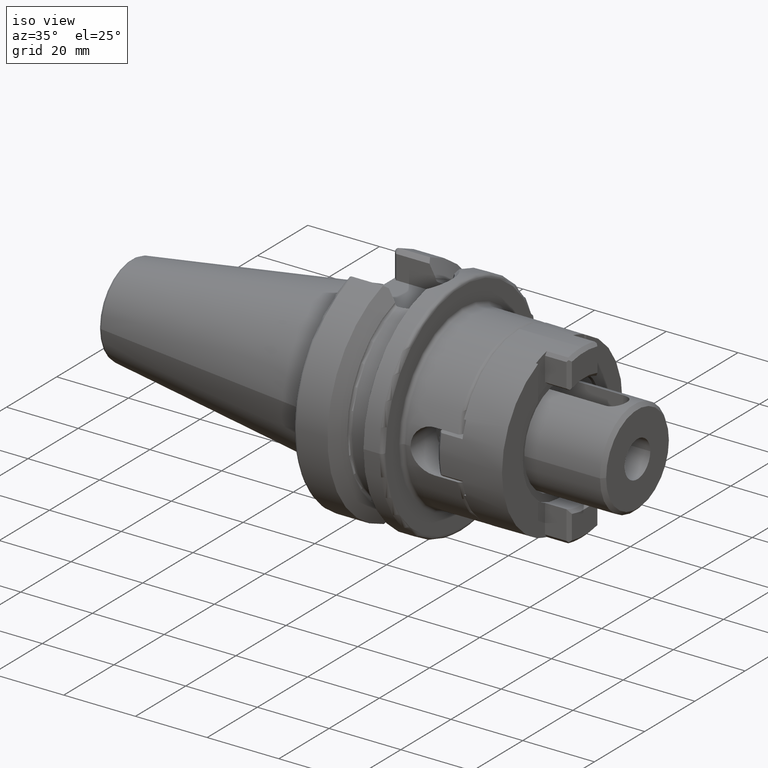
[diagram: clean part render]
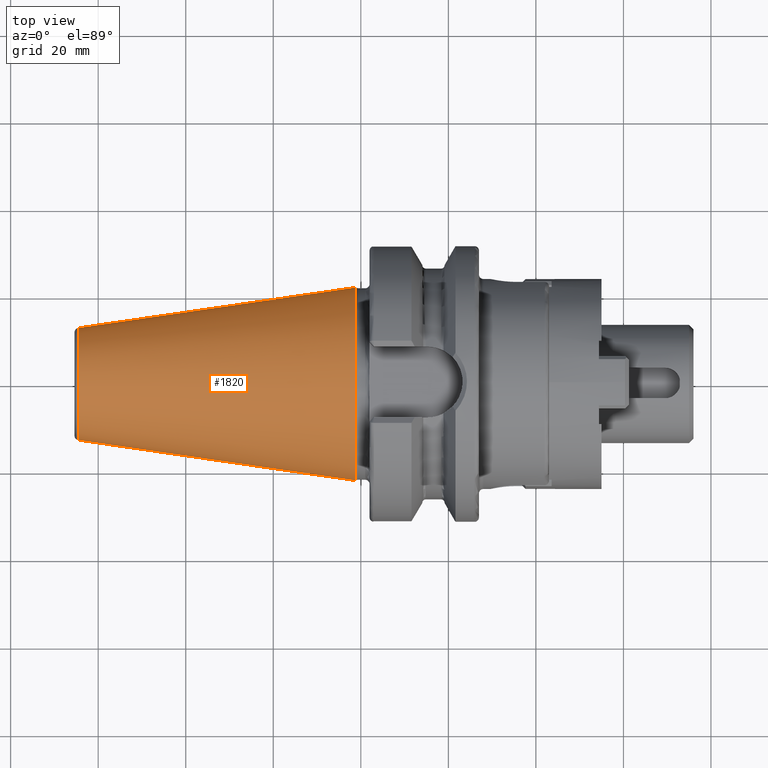
[diagram: tour spotlight — one face highlighted and labeled with its STEP entity id]
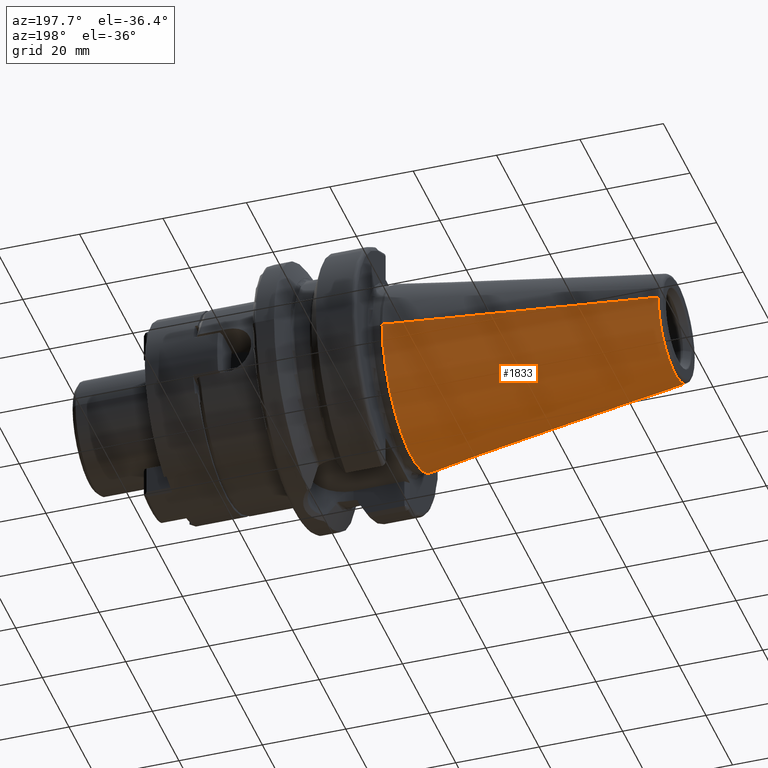
[diagram: tour spotlight — one face highlighted and labeled with its STEP entity id]
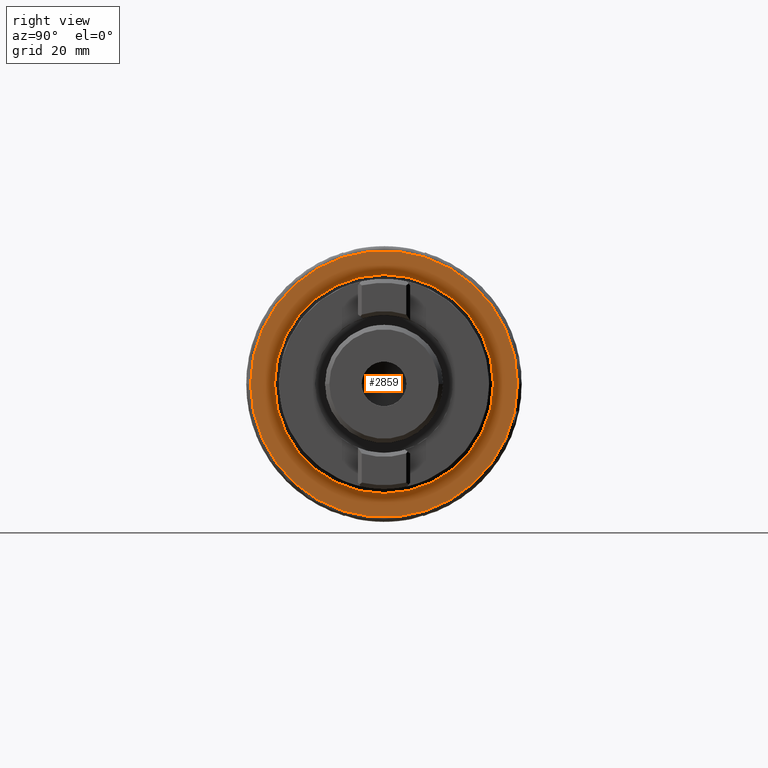
[diagram: tour spotlight — one face highlighted and labeled with its STEP entity id]
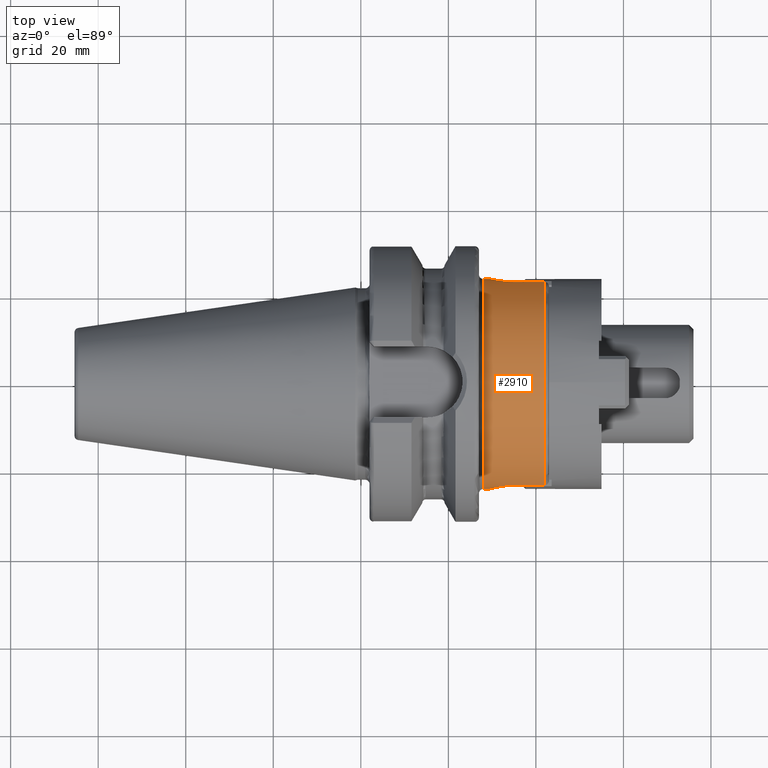
[diagram: tour spotlight — one face highlighted and labeled with its STEP entity id]
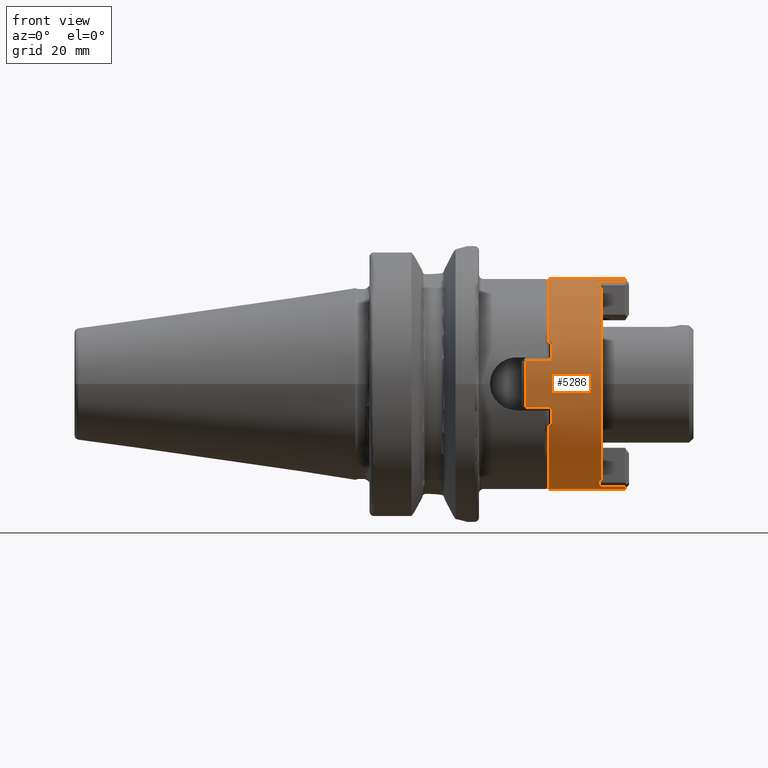
[diagram: tour spotlight — one face highlighted and labeled with its STEP entity id]
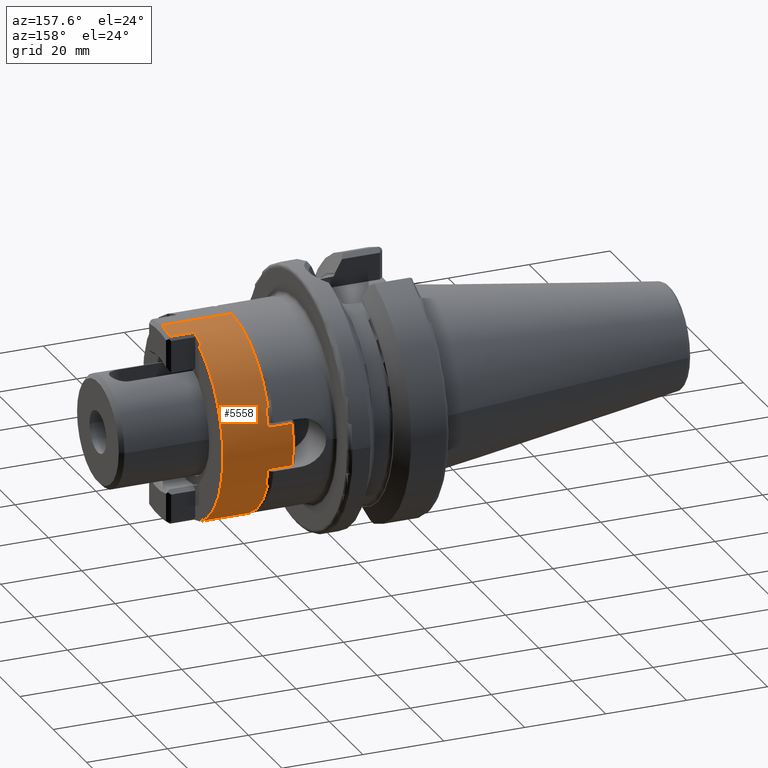
[diagram: tour spotlight — one face highlighted and labeled with its STEP entity id]
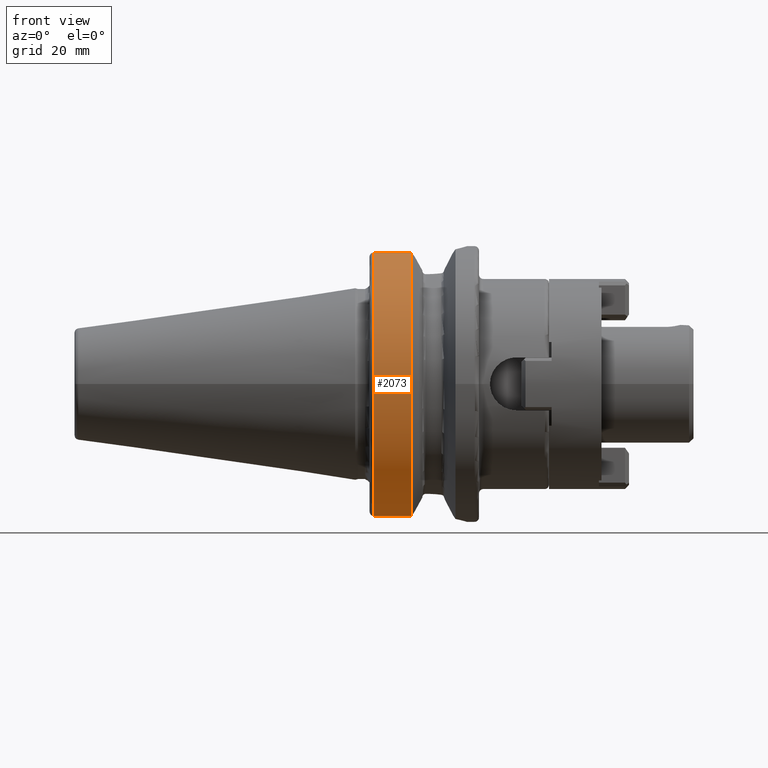
[diagram: tour spotlight — one face highlighted and labeled with its STEP entity id]
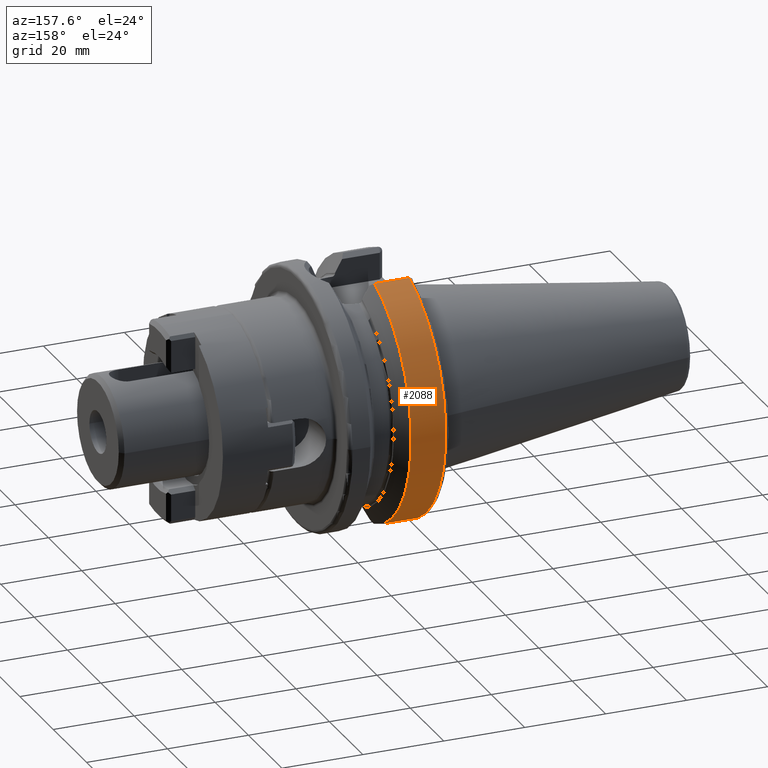
[diagram: tour spotlight — one face highlighted and labeled with its STEP entity id]
A machine part: a face-by-face anatomy tour. The part has 188 B-rep faces; the first image is the clean iso view, then the 8 largest visible faces are spotlighted one at a time (largest first), each with its STEP entity span.

Face 1 — top view, entity #1820. In plain terms, the highlighted conical surface has half-angle 8.298 deg.
Definition (entity closure, byte-faithful):
#37=CARTESIAN_POINT('',(-6.454431866917E1,0.E0,0.E0));
#38=DIRECTION('',(1.E0,0.E0,0.E0));
#39=DIRECTION('',(0.E0,1.E0,0.E0));
#40=AXIS2_PLACEMENT_3D('',#37,#38,#39);
#42=CARTESIAN_POINT('',(-1.266732031557E0,0.E0,0.E0));
#43=DIRECTION('',(1.E0,0.E0,0.E0));
#44=DIRECTION('',(0.E0,1.E0,0.E0));
#45=AXIS2_PLACEMENT_3D('',#42,#43,#44);
#47=DIRECTION('',(-9.895312636440E-1,-1.443186691705E-1,0.E0));
#48=VECTOR('',#47,6.394703124850E1);
#49=CARTESIAN_POINT('',(-1.266732031557E0,2.204025284980E1,0.E0));
#50=LINE('',#49,#48);
#51=DIRECTION('',(-9.895312636440E-1,1.443186691705E-1,0.E0));
#52=VECTOR('',#51,6.394703124850E1);
#53=CARTESIAN_POINT('',(-1.266732031557E0,-2.204025284980E1,0.E0));
#54=LINE('',#53,#52);
#1454=CARTESIAN_POINT('',(-6.454431866917E1,1.281150240261E1,0.E0));
#1456=VERTEX_POINT('',#1454);
#1458=CARTESIAN_POINT('',(-6.454431866917E1,-1.281150240261E1,0.E0));
#1460=VERTEX_POINT('',#1458);
#1673=CARTESIAN_POINT('',(-1.266732031557E0,2.204025284980E1,0.E0));
#1674=VERTEX_POINT('',#1673);
#1675=CARTESIAN_POINT('',(-1.266732031557E0,-2.204025284980E1,0.E0));
#1676=VERTEX_POINT('',#1675);
#1806=CARTESIAN_POINT('',(-3.290552535036E1,0.E0,0.E0));
#1807=DIRECTION('',(1.E0,0.E0,0.E0));
#1808=DIRECTION('',(0.E0,-1.E0,0.E0));
#1809=AXIS2_PLACEMENT_3D('',#1806,#1807,#1808);
#1810=CONICAL_SURFACE('',#1809,1.742587762621E1,8.297826828206E0);
#1812=ORIENTED_EDGE('',*,*,#1811,.F.);
#1814=ORIENTED_EDGE('',*,*,#1813,.T.);
#1816=ORIENTED_EDGE('',*,*,#1815,.T.);
#1817=ORIENTED_EDGE('',*,*,#1799,.F.);
#1818=EDGE_LOOP('',(#1812,#1814,#1816,#1817));
#1819=FACE_OUTER_BOUND('',#1818,.F.);
#1820=ADVANCED_FACE('',(#1819),#1810,.T.);
#41=CIRCLE('',#40,1.281150240261E1);
#46=CIRCLE('',#45,2.204025284980E1);
#1799=EDGE_CURVE('',#1456,#1460,#41,.T.);
#1811=EDGE_CURVE('',#1674,#1456,#50,.T.);
#1813=EDGE_CURVE('',#1674,#1676,#46,.T.);
#1815=EDGE_CURVE('',#1676,#1460,#54,.T.);

Face 2 — auxiliary view, entity #1833. In plain terms, the highlighted conical surface has half-angle 8.298 deg.
Definition (entity closure, byte-faithful):
#32=CARTESIAN_POINT('',(-6.454431866917E1,0.E0,0.E0));
#33=DIRECTION('',(-1.E0,0.E0,0.E0));
#34=DIRECTION('',(0.E0,1.E0,0.E0));
#35=AXIS2_PLACEMENT_3D('',#32,#33,#34);
#47=DIRECTION('',(-9.895312636440E-1,-1.443186691705E-1,0.E0));
#48=VECTOR('',#47,6.394703124850E1);
#49=CARTESIAN_POINT('',(-1.266732031557E0,2.204025284980E1,0.E0));
#50=LINE('',#49,#48);
#51=DIRECTION('',(-9.895312636440E-1,1.443186691705E-1,0.E0));
#52=VECTOR('',#51,6.394703124850E1);
#53=CARTESIAN_POINT('',(-1.266732031557E0,-2.204025284980E1,0.E0));
#54=LINE('',#53,#52);
#55=CARTESIAN_POINT('',(-1.266732031557E0,0.E0,0.E0));
#56=DIRECTION('',(-1.E0,0.E0,0.E0));
#57=DIRECTION('',(0.E0,1.E0,0.E0));
#58=AXIS2_PLACEMENT_3D('',#55,#56,#57);
#1454=CARTESIAN_POINT('',(-6.454431866917E1,1.281150240261E1,0.E0));
#1456=VERTEX_POINT('',#1454);
#1458=CARTESIAN_POINT('',(-6.454431866917E1,-1.281150240261E1,0.E0));
#1460=VERTEX_POINT('',#1458);
#1673=CARTESIAN_POINT('',(-1.266732031557E0,2.204025284980E1,0.E0));
#1674=VERTEX_POINT('',#1673);
#1675=CARTESIAN_POINT('',(-1.266732031557E0,-2.204025284980E1,0.E0));
#1676=VERTEX_POINT('',#1675);
#1821=CARTESIAN_POINT('',(-3.290552535036E1,0.E0,0.E0));
#1822=DIRECTION('',(1.E0,0.E0,0.E0));
#1823=DIRECTION('',(0.E0,-1.E0,0.E0));
#1824=AXIS2_PLACEMENT_3D('',#1821,#1822,#1823);
#1825=CONICAL_SURFACE('',#1824,1.742587762621E1,8.297826828206E0);
#1826=ORIENTED_EDGE('',*,*,#1811,.T.);
#1827=ORIENTED_EDGE('',*,*,#1788,.T.);
#1828=ORIENTED_EDGE('',*,*,#1815,.F.);
#1830=ORIENTED_EDGE('',*,*,#1829,.F.);
#1831=EDGE_LOOP('',(#1826,#1827,#1828,#1830));
#1832=FACE_OUTER_BOUND('',#1831,.F.);
#1833=ADVANCED_FACE('',(#1832),#1825,.T.);
#36=CIRCLE('',#35,1.281150240261E1);
#59=CIRCLE('',#58,2.204025284980E1);
#1788=EDGE_CURVE('',#1456,#1460,#36,.T.);
#1811=EDGE_CURVE('',#1674,#1456,#50,.T.);
#1815=EDGE_CURVE('',#1676,#1460,#54,.T.);
#1829=EDGE_CURVE('',#1674,#1676,#59,.T.);

Face 3 — right view, entity #2859. In plain terms, the highlighted planar face has unit normal (1, 0, 0).
Definition (entity closure, byte-faithful):
#816=CARTESIAN_POINT('',(2.7E1,0.E0,0.E0));
#817=DIRECTION('',(1.E0,0.E0,0.E0));
#818=DIRECTION('',(0.E0,1.E0,0.E0));
#819=AXIS2_PLACEMENT_3D('',#816,#817,#818);
#831=CARTESIAN_POINT('',(2.7E1,0.E0,0.E0));
#832=DIRECTION('',(-1.E0,0.E0,0.E0));
#833=DIRECTION('',(0.E0,1.E0,0.E0));
#834=AXIS2_PLACEMENT_3D('',#831,#832,#833);
#836=CARTESIAN_POINT('',(2.7E1,0.E0,0.E0));
#837=DIRECTION('',(1.E0,0.E0,0.E0));
#838=DIRECTION('',(0.E0,-1.E0,0.E0));
#839=AXIS2_PLACEMENT_3D('',#836,#837,#838);
#841=CARTESIAN_POINT('',(2.7E1,0.E0,0.E0));
#842=DIRECTION('',(1.E0,0.E0,0.E0));
#843=DIRECTION('',(0.E0,1.E0,0.E0));
#844=AXIS2_PLACEMENT_3D('',#841,#842,#843);
#1588=CARTESIAN_POINT('',(2.7E1,3.04875E1,0.E0));
#1589=VERTEX_POINT('',#1588);
#1590=CARTESIAN_POINT('',(2.7E1,-3.04875E1,0.E0));
#1591=VERTEX_POINT('',#1590);
#1681=CARTESIAN_POINT('',(2.7E1,-2.5E1,0.E0));
#1682=CARTESIAN_POINT('',(2.7E1,2.5E1,0.E0));
#1683=VERTEX_POINT('',#1681);
#1684=VERTEX_POINT('',#1682);
#2844=CARTESIAN_POINT('',(2.7E1,0.E0,0.E0));
#2845=DIRECTION('',(1.E0,0.E0,0.E0));
#2846=DIRECTION('',(0.E0,-1.E0,0.E0));
#2847=AXIS2_PLACEMENT_3D('',#2844,#2845,#2846);
#2848=PLANE('',#2847);
#2849=ORIENTED_EDGE('',*,*,#2839,.T.);
#2850=ORIENTED_EDGE('',*,*,#2823,.F.);
#2851=EDGE_LOOP('',(#2849,#2850));
#2852=FACE_OUTER_BOUND('',#2851,.F.);
#2854=ORIENTED_EDGE('',*,*,#2853,.T.);
#2856=ORIENTED_EDGE('',*,*,#2855,.T.);
#2857=EDGE_LOOP('',(#2854,#2856));
#2858=FACE_BOUND('',#2857,.F.);
#2859=ADVANCED_FACE('',(#2852,#2858),#2848,.T.);
#820=CIRCLE('',#819,3.04875E1);
#835=CIRCLE('',#834,3.04875E1);
#840=CIRCLE('',#839,2.5E1);
#845=CIRCLE('',#844,2.5E1);
#2823=EDGE_CURVE('',#1589,#1591,#820,.T.);
#2839=EDGE_CURVE('',#1589,#1591,#835,.T.);
#2853=EDGE_CURVE('',#1683,#1684,#840,.T.);
#2855=EDGE_CURVE('',#1684,#1683,#845,.T.);

Face 4 — top view, entity #2910. In plain terms, the highlighted cylindrical surface (partial cylindrical patch) has radius 24 mm, axis along (1, 0, 0).
Definition (entity closure, byte-faithful):
#856=CARTESIAN_POINT('',(2.95E1,-2.4E1,1.781618678588E-14));
#857=CARTESIAN_POINT('',(2.95E1,-2.4E1,3.488262743599E-1));
#858=CARTESIAN_POINT('',(2.955889643114E1,-2.398503528996E1,1.038250969591E0));
#859=CARTESIAN_POINT('',(2.983158461458E1,-2.391776675992E1,2.067790313911E0));
#860=CARTESIAN_POINT('',(3.027461777692E1,-2.381466005755E1,3.025106007733E0));
#861=CARTESIAN_POINT('',(3.089124119872E1,-2.368443000705E1,3.908877580077E0));
#862=CARTESIAN_POINT('',(3.164154581482E1,-2.354687965137E1,4.658911586512E0));
#863=CARTESIAN_POINT('',(3.252288948517E1,-2.341541019139E1,5.274215121698E0));
#864=CARTESIAN_POINT('',(3.348229664474E1,-2.330967321893E1,5.718618426214E0));
#865=CARTESIAN_POINT('',(3.451288838854E1,-2.324036823877E1,5.991271601747E0));
#866=CARTESIAN_POINT('',(3.520148853397E1,-2.322493272326E1,6.05E0));
#867=CARTESIAN_POINT('',(3.555E1,-2.322493272326E1,6.05E0));
#869=CARTESIAN_POINT('',(2.8E1,0.E0,0.E0));
#870=DIRECTION('',(1.E0,0.E0,0.E0));
#871=DIRECTION('',(0.E0,1.E0,0.E0));
#872=AXIS2_PLACEMENT_3D('',#869,#870,#871);
#874=CARTESIAN_POINT('',(3.555E1,2.322493272326E1,6.05E0));
#875=CARTESIAN_POINT('',(3.520148896936E1,2.322493272326E1,6.05E0));
#876=CARTESIAN_POINT('',(3.451288623510E1,2.324036827927E1,5.991271387898E0));
#877=CARTESIAN_POINT('',(3.348228520251E1,2.330967389442E1,5.718615987162E0));
#878=CARTESIAN_POINT('',(3.252284841371E1,2.341541529589E1,5.274192937461E0));
#879=CARTESIAN_POINT('',(3.164150055989E1,2.354688699842E1,4.658875788756E0));
#880=CARTESIAN_POINT('',(3.089116787305E1,2.368444427366E1,3.908795312810E0));
#881=CARTESIAN_POINT('',(3.027455409787E1,2.381467439077E1,3.024991020678E0));
#882=CARTESIAN_POINT('',(2.983155295637E1,2.391777441906E1,2.067706148079E0));
#883=CARTESIAN_POINT('',(2.955887227362E1,2.398504135523E1,1.038108983739E0));
#884=CARTESIAN_POINT('',(2.95E1,2.4E1,3.487685758230E-1));
#885=CARTESIAN_POINT('',(2.95E1,2.4E1,0.E0));
#887=DIRECTION('',(1.E0,0.E0,0.E0));
#888=VECTOR('',#887,6.45E0);
#889=CARTESIAN_POINT('',(3.555E1,2.322493272326E1,6.05E0));
#890=LINE('',#889,#888);
#891=CARTESIAN_POINT('',(4.2E1,0.E0,0.E0));
#892=DIRECTION('',(-1.E0,0.E0,0.E0));
#893=DIRECTION('',(0.E0,-9.677055301359E-1,2.520833333333E-1));
#894=AXIS2_PLACEMENT_3D('',#891,#892,#893);
#896=DIRECTION('',(1.E0,0.E0,0.E0));
#897=VECTOR('',#896,6.45E0);
#898=CARTESIAN_POINT('',(3.555E1,-2.322493272326E1,6.05E0));
#899=LINE('',#898,#897);
#1221=DIRECTION('',(-1.E0,0.E0,8.752958054790E-13));
#1222=VECTOR('',#1221,1.5E0);
#1223=CARTESIAN_POINT('',(2.95E1,2.4E1,0.E0));
#1224=LINE('',#1223,#1222);
#1230=DIRECTION('',(-1.E0,0.E0,-8.876199103329E-13));
#1231=VECTOR('',#1230,1.5E0);
#1232=CARTESIAN_POINT('',(2.95E1,-2.4E1,1.781618678588E-14));
#1233=LINE('',#1232,#1231);
#1685=CARTESIAN_POINT('',(2.8E1,-2.4E1,0.E0));
#1686=CARTESIAN_POINT('',(2.8E1,2.4E1,0.E0));
#1687=VERTEX_POINT('',#1685);
#1688=VERTEX_POINT('',#1686);
#1719=VERTEX_POINT('',#874);
#1720=VERTEX_POINT('',#885);
#1721=CARTESIAN_POINT('',(4.2E1,2.322493272326E1,6.05E0));
#1722=VERTEX_POINT('',#1721);
#1736=CARTESIAN_POINT('',(3.555E1,-2.322493272326E1,6.05E0));
#1737=VERTEX_POINT('',#1736);
#1742=VERTEX_POINT('',#856);
#1743=CARTESIAN_POINT('',(4.2E1,-2.322493272326E1,6.05E0));
#1744=VERTEX_POINT('',#1743);
#2888=CARTESIAN_POINT('',(2.455E1,0.E0,0.E0));
#2889=DIRECTION('',(1.E0,0.E0,0.E0));
#2890=DIRECTION('',(0.E0,-1.E0,0.E0));
#2891=AXIS2_PLACEMENT_3D('',#2888,#2889,#2890);
#2892=CYLINDRICAL_SURFACE('',#2891,2.4E1);
#2894=ORIENTED_EDGE('',*,*,#2893,.F.);
#2896=ORIENTED_EDGE('',*,*,#2895,.T.);
#2897=ORIENTED_EDGE('',*,*,#2882,.F.);
#2899=ORIENTED_EDGE('',*,*,#2898,.F.);
#2901=ORIENTED_EDGE('',*,*,#2900,.F.);
#2903=ORIENTED_EDGE('',*,*,#2902,.T.);
#2905=ORIENTED_EDGE('',*,*,#2904,.F.);
#2907=ORIENTED_EDGE('',*,*,#2906,.F.);
#2908=EDGE_LOOP('',(#2894,#2896,#2897,#2899,#2901,#2903,#2905,#2907));
#2909=FACE_OUTER_BOUND('',#2908,.F.);
#2910=ADVANCED_FACE('',(#2909),#2892,.T.);
#868=B_SPLINE_CURVE_WITH_KNOTS('',3,(#856,#857,#858,#859,#860,#861,#862,#863,
#864,#865,#866,#867),.UNSPECIFIED.,.F.,.F.,(4,1,1,1,1,1,1,1,1,4),(0.E0,
1.111111111111E-1,2.222222222222E-1,3.333333333333E-1,4.444444444444E-1,
5.555555555556E-1,6.666666666667E-1,7.777777777778E-1,8.888888888889E-1,1.E0),
.UNSPECIFIED.);
#873=CIRCLE('',#872,2.4E1);
#886=B_SPLINE_CURVE_WITH_KNOTS('',3,(#874,#875,#876,#877,#878,#879,#880,#881,
#882,#883,#884,#885),.UNSPECIFIED.,.F.,.F.,(4,1,1,1,1,1,1,1,1,4),(0.E0,
1.111111111111E-1,2.222222222222E-1,3.333333333333E-1,4.444444444444E-1,
5.555555555556E-1,6.666666666667E-1,7.777777777778E-1,8.888888888889E-1,1.E0),
.UNSPECIFIED.);
#895=CIRCLE('',#894,2.4E1);
#2882=EDGE_CURVE('',#1688,#1687,#873,.T.);
#2893=EDGE_CURVE('',#1742,#1737,#868,.T.);
#2895=EDGE_CURVE('',#1742,#1687,#1233,.T.);
#2898=EDGE_CURVE('',#1720,#1688,#1224,.T.);
#2900=EDGE_CURVE('',#1719,#1720,#886,.T.);
#2902=EDGE_CURVE('',#1719,#1722,#890,.T.);
#2904=EDGE_CURVE('',#1744,#1722,#895,.T.);
#2906=EDGE_CURVE('',#1737,#1744,#899,.T.);

Face 5 — front view, entity #5286. In plain terms, the highlighted cylindrical surface (partial cylindrical patch) has radius 24 mm, axis along (-1, 0, 0).
Definition (entity closure, byte-faithful):
#3967=CARTESIAN_POINT('',(0.E0,-5.3625E0,0.E0));
#3968=DIRECTION('',(0.E0,-1.E0,0.E0));
#3969=DIRECTION('',(-1.E0,0.E0,0.E0));
#3970=AXIS2_PLACEMENT_3D('',#3967,#3968,#3969);
#3972=DIRECTION('',(0.E0,-1.E0,0.E0));
#3973=VECTOR('',#3972,5.9625E0);
#3974=CARTESIAN_POINT('',(-2.341422070349E1,6.E-1,-5.270129870130E0));
#3975=LINE('',#3974,#3973);
#3976=DIRECTION('',(0.E0,1.E0,0.E0));
#3977=VECTOR('',#3976,6.E-1);
#3978=CARTESIAN_POINT('',(-2.200834486621E1,0.E0,-9.5725E0));
#3979=LINE('',#3978,#3977);
#3980=CARTESIAN_POINT('',(0.E0,0.E0,0.E0));
#3981=DIRECTION('',(0.E0,-1.E0,0.E0));
#3982=DIRECTION('',(-9.170143694254E-1,0.E0,-3.988541666667E-1));
#3983=AXIS2_PLACEMENT_3D('',#3980,#3981,#3982);
#3985=DIRECTION('',(0.E0,1.E0,0.E0));
#3986=VECTOR('',#3985,6.E-1);
#3987=CARTESIAN_POINT('',(2.200834486621E1,0.E0,-9.5725E0));
#3988=LINE('',#3987,#3986);
#3989=DIRECTION('',(6.137182539479E-14,1.E0,0.E0));
#3990=VECTOR('',#3989,5.9625E0);
#3991=CARTESIAN_POINT('',(2.341422070349E1,-5.3625E0,-5.270129870130E0));
#3992=LINE('',#3991,#3990);
#3993=CARTESIAN_POINT('',(0.E0,-5.3625E0,0.E0));
#3994=DIRECTION('',(0.E0,-1.E0,0.E0));
#3995=DIRECTION('',(9.755925293123E-1,0.E0,-2.195887445887E-1));
#3996=AXIS2_PLACEMENT_3D('',#3993,#3994,#3995);
#3998=DIRECTION('',(3.385027639349E-12,1.E0,5.034390798674E-12));
#3999=VECTOR('',#3998,1.736250000006E1);
#4000=CARTESIAN_POINT('',(2.399999999994E1,-5.362500000059E0,
-8.741022380364E-11));
#4001=LINE('',#4000,#3999);
#4002=CARTESIAN_POINT('',(0.E0,1.2E1,0.E0));
#4003=DIRECTION('',(0.E0,1.E0,0.E0));
#4004=DIRECTION('',(1.E0,0.E0,0.E0));
#4005=AXIS2_PLACEMENT_3D('',#4002,#4003,#4004);
#4007=DIRECTION('',(0.E0,1.E0,0.E0));
#4008=VECTOR('',#4007,6.E-1);
#4009=CARTESIAN_POINT('',(9.5725E0,1.14E1,-2.200834486621E1));
#4010=LINE('',#4009,#4008);
#4011=DIRECTION('',(1.171176282830E-9,-1.E0,-5.203324470214E-9));
#4012=VECTOR('',#4011,5.962499936398E0);
#4013=CARTESIAN_POINT('',(5.270129863147E0,1.736249993640E1,-2.341422067247E1));
#4014=LINE('',#4013,#4012);
#4015=DIRECTION('',(-1.253773403544E-9,9.999999999991E-1,1.355436847203E-6));
#4016=VECTOR('',#4015,5.962508307047E0);
#4017=CARTESIAN_POINT('',(-5.270129870130E0,1.14E1,-2.341422070349E1));
#4018=LINE('',#4017,#4016);
#4019=DIRECTION('',(0.E0,1.E0,0.E0));
#4020=VECTOR('',#4019,6.E-1);
#4021=CARTESIAN_POINT('',(-9.5725E0,1.14E1,-2.200834486621E1));
#4022=LINE('',#4021,#4020);
#4023=CARTESIAN_POINT('',(0.E0,1.2E1,0.E0));
#4024=DIRECTION('',(0.E0,1.E0,0.E0));
#4025=DIRECTION('',(-3.988541666667E-1,0.E0,-9.170143694254E-1));
#4026=AXIS2_PLACEMENT_3D('',#4023,#4024,#4025);
#4095=CARTESIAN_POINT('',(0.E0,6.E-1,0.E0));
#4096=DIRECTION('',(0.E0,1.E0,0.E0));
#4097=DIRECTION('',(-9.170143694254E-1,0.E0,-3.988541666667E-1));
#4098=AXIS2_PLACEMENT_3D('',#4095,#4096,#4097);
#4100=CARTESIAN_POINT('',(0.E0,6.E-1,0.E0));
#4101=DIRECTION('',(0.E0,1.E0,0.E0));
#4102=DIRECTION('',(9.755925293123E-1,0.E0,-2.195887445887E-1));
#4103=AXIS2_PLACEMENT_3D('',#4100,#4101,#4102);
#4248=DIRECTION('',(-3.366816464840E-12,1.E0,-3.849708357264E-12));
#4249=VECTOR('',#4248,1.736250000006E1);
#4250=CARTESIAN_POINT('',(-2.399999999994E1,-5.362500000058E0,
6.683860191834E-11));
#4251=LINE('',#4250,#4249);
#4374=CARTESIAN_POINT('',(-3.114674271288E-6,1.736250022926E1,
1.216882898269E-5));
#4375=DIRECTION('',(0.E0,-1.E0,0.E0));
#4376=DIRECTION('',(-2.195885124470E-1,0.E0,-9.755925815633E-1));
#4377=AXIS2_PLACEMENT_3D('',#4374,#4375,#4376);
#4476=CARTESIAN_POINT('',(0.E0,1.14E1,0.E0));
#4477=DIRECTION('',(0.E0,-1.E0,0.E0));
#4478=DIRECTION('',(2.195887445887E-1,0.E0,-9.755925293123E-1));
#4479=AXIS2_PLACEMENT_3D('',#4476,#4477,#4478);
#4622=CARTESIAN_POINT('',(0.E0,1.14E1,0.E0));
#4623=DIRECTION('',(0.E0,-1.E0,0.E0));
#4624=DIRECTION('',(-3.988541666667E-1,0.E0,-9.170143694254E-1));
#4625=AXIS2_PLACEMENT_3D('',#4622,#4623,#4624);
#4906=CARTESIAN_POINT('',(2.4E1,1.2E1,-1.065814103640E-14));
#4907=CARTESIAN_POINT('',(9.5725E0,1.2E1,-2.200834486621E1));
#4908=VERTEX_POINT('',#4906);
#4909=VERTEX_POINT('',#4907);
#4910=CARTESIAN_POINT('',(-9.5725E0,1.2E1,-2.200834486621E1));
#4911=CARTESIAN_POINT('',(-2.4E1,1.2E1,0.E0));
#4912=VERTEX_POINT('',#4910);
#4913=VERTEX_POINT('',#4911);
#4938=CARTESIAN_POINT('',(9.5725E0,1.14E1,-2.200834486621E1));
#4939=VERTEX_POINT('',#4938);
#4940=CARTESIAN_POINT('',(-9.5725E0,1.14E1,-2.200834486621E1));
#4941=VERTEX_POINT('',#4940);
#4970=CARTESIAN_POINT('',(-2.200834486621E1,0.E0,-9.5725E0));
#4972=VERTEX_POINT('',#4970);
#4975=CARTESIAN_POINT('',(2.200834486621E1,0.E0,-9.5725E0));
#4977=VERTEX_POINT('',#4975);
#4978=CARTESIAN_POINT('',(-2.200834486621E1,6.E-1,-9.5725E0));
#4980=VERTEX_POINT('',#4978);
#4983=CARTESIAN_POINT('',(2.200834486621E1,6.E-1,-9.5725E0));
#4985=VERTEX_POINT('',#4983);
#4990=CARTESIAN_POINT('',(-5.270130078263E0,1.736250022926E1,
-2.341422162819E1));
#4991=CARTESIAN_POINT('',(5.270129777889E0,1.736250022926E1,-2.341422029369E1));
#4992=VERTEX_POINT('',#4990);
#4993=VERTEX_POINT('',#4991);
#5018=CARTESIAN_POINT('',(-5.270129870130E0,1.14E1,-2.341422070349E1));
#5019=VERTEX_POINT('',#5018);
#5028=CARTESIAN_POINT('',(5.270129870130E0,1.14E1,-2.341422070349E1));
#5029=VERTEX_POINT('',#5028);
#5089=CARTESIAN_POINT('',(-2.4E1,-5.3625E0,0.E0));
#5090=CARTESIAN_POINT('',(-2.341422070349E1,-5.3625E0,-5.270129870130E0));
#5091=VERTEX_POINT('',#5089);
#5092=VERTEX_POINT('',#5090);
#5093=CARTESIAN_POINT('',(-2.341422070349E1,6.E-1,-5.270129870130E0));
#5094=VERTEX_POINT('',#5093);
#5119=CARTESIAN_POINT('',(2.4E1,-5.3625E0,0.E0));
#5120=VERTEX_POINT('',#5119);
#5121=CARTESIAN_POINT('',(2.341422070349E1,-5.3625E0,-5.270129870130E0));
#5122=VERTEX_POINT('',#5121);
#5127=CARTESIAN_POINT('',(2.341422070349E1,6.E-1,-5.270129870130E0));
#5128=VERTEX_POINT('',#5127);
#5240=CARTESIAN_POINT('',(0.E0,-6.2625E0,0.E0));
#5241=DIRECTION('',(0.E0,1.E0,0.E0));
#5242=DIRECTION('',(1.E0,0.E0,0.E0));
#5243=AXIS2_PLACEMENT_3D('',#5240,#5241,#5242);
#5244=CYLINDRICAL_SURFACE('',#5243,2.4E1);
#5245=ORIENTED_EDGE('',*,*,#5225,.T.);
#5247=ORIENTED_EDGE('',*,*,#5246,.F.);
#5249=ORIENTED_EDGE('',*,*,#5248,.F.);
#5251=ORIENTED_EDGE('',*,*,#5250,.F.);
#5253=ORIENTED_EDGE('',*,*,#5252,.T.);
#5255=ORIENTED_EDGE('',*,*,#5254,.T.);
#5257=ORIENTED_EDGE('',*,*,#5256,.F.);
#5259=ORIENTED_EDGE('',*,*,#5258,.F.);
#5261=ORIENTED_EDGE('',*,*,#5260,.T.);
#5263=ORIENTED_EDGE('',*,*,#5262,.T.);
#5265=ORIENTED_EDGE('',*,*,#5264,.T.);
#5267=ORIENTED_EDGE('',*,*,#5266,.F.);
#5269=ORIENTED_EDGE('',*,*,#5268,.F.);
#5271=ORIENTED_EDGE('',*,*,#5270,.F.);
#5273=ORIENTED_EDGE('',*,*,#5272,.F.);
#5275=ORIENTED_EDGE('',*,*,#5274,.F.);
#5277=ORIENTED_EDGE('',*,*,#5276,.F.);
#5279=ORIENTED_EDGE('',*,*,#5278,.T.);
#5281=ORIENTED_EDGE('',*,*,#5280,.T.);
#5283=ORIENTED_EDGE('',*,*,#5282,.F.);
#5284=EDGE_LOOP('',(#5245,#5247,#5249,#5251,#5253,#5255,#5257,#5259,#5261,#5263,
#5265,#5267,#5269,#5271,#5273,#5275,#5277,#5279,#5281,#5283));
#5285=FACE_OUTER_BOUND('',#5284,.F.);
#5286=ADVANCED_FACE('',(#5285),#5244,.T.);
#3971=CIRCLE('',#3970,2.4E1);
#3984=CIRCLE('',#3983,2.4E1);
#3997=CIRCLE('',#3996,2.4E1);
#4006=CIRCLE('',#4005,2.4E1);
#4027=CIRCLE('',#4026,2.4E1);
#4099=CIRCLE('',#4098,2.4E1);
#4104=CIRCLE('',#4103,2.4E1);
#4378=CIRCLE('',#4377,2.400001213570E1);
#4480=CIRCLE('',#4479,2.4E1);
#4626=CIRCLE('',#4625,2.4E1);
#5225=EDGE_CURVE('',#5091,#5092,#3971,.T.);
#5246=EDGE_CURVE('',#5094,#5092,#3975,.T.);
#5248=EDGE_CURVE('',#4980,#5094,#4099,.T.);
#5250=EDGE_CURVE('',#4972,#4980,#3979,.T.);
#5252=EDGE_CURVE('',#4972,#4977,#3984,.T.);
#5254=EDGE_CURVE('',#4977,#4985,#3988,.T.);
#5256=EDGE_CURVE('',#5128,#4985,#4104,.T.);
#5258=EDGE_CURVE('',#5122,#5128,#3992,.T.);
#5260=EDGE_CURVE('',#5122,#5120,#3997,.T.);
#5262=EDGE_CURVE('',#5120,#4908,#4001,.T.);
#5264=EDGE_CURVE('',#4908,#4909,#4006,.T.);
#5266=EDGE_CURVE('',#4939,#4909,#4010,.T.);
#5268=EDGE_CURVE('',#5029,#4939,#4480,.T.);
#5270=EDGE_CURVE('',#4993,#5029,#4014,.T.);
#5272=EDGE_CURVE('',#4992,#4993,#4378,.T.);
#5274=EDGE_CURVE('',#5019,#4992,#4018,.T.);
#5276=EDGE_CURVE('',#4941,#5019,#4626,.T.);
#5278=EDGE_CURVE('',#4941,#4912,#4022,.T.);
#5280=EDGE_CURVE('',#4912,#4913,#4027,.T.);
#5282=EDGE_CURVE('',#5091,#4913,#4251,.T.);

Face 6 — auxiliary view, entity #5558. In plain terms, the highlighted cylindrical surface (partial cylindrical patch) has radius 24 mm, axis along (-1, 0, 0).
Definition (entity closure, byte-faithful):
#3998=DIRECTION('',(3.385027639349E-12,1.E0,5.034390798674E-12));
#3999=VECTOR('',#3998,1.736250000006E1);
#4000=CARTESIAN_POINT('',(2.399999999994E1,-5.362500000059E0,
-8.741022380364E-11));
#4001=LINE('',#4000,#3999);
#4239=DIRECTION('',(6.196766835979E-14,1.E0,0.E0));
#4240=VECTOR('',#4239,5.9625E0);
#4241=CARTESIAN_POINT('',(-2.341422070350E1,-5.3625E0,5.270129870130E0));
#4242=LINE('',#4241,#4240);
#4243=CARTESIAN_POINT('',(0.E0,-5.3625E0,0.E0));
#4244=DIRECTION('',(0.E0,-1.E0,0.E0));
#4245=DIRECTION('',(-9.755925293123E-1,0.E0,2.195887445887E-1));
#4246=AXIS2_PLACEMENT_3D('',#4243,#4244,#4245);
#4248=DIRECTION('',(-3.366816464840E-12,1.E0,-3.849708357264E-12));
#4249=VECTOR('',#4248,1.736250000006E1);
#4250=CARTESIAN_POINT('',(-2.399999999994E1,-5.362500000058E0,
6.683860191834E-11));
#4251=LINE('',#4250,#4249);
#4252=CARTESIAN_POINT('',(0.E0,1.2E1,0.E0));
#4253=DIRECTION('',(0.E0,1.E0,0.E0));
#4254=DIRECTION('',(-1.E0,0.E0,0.E0));
#4255=AXIS2_PLACEMENT_3D('',#4252,#4253,#4254);
#4257=DIRECTION('',(0.E0,1.E0,0.E0));
#4258=VECTOR('',#4257,6.E-1);
#4259=CARTESIAN_POINT('',(-9.5725E0,1.14E1,2.200834486621E1));
#4260=LINE('',#4259,#4258);
#4261=DIRECTION('',(1.187599328175E-9,-1.E0,-5.276282945331E-9));
#4262=VECTOR('',#4261,5.962500064494E0);
#4263=CARTESIAN_POINT('',(-5.270129877211E0,1.736250006449E1,2.341422073495E1));
#4264=LINE('',#4263,#4262);
#4265=DIRECTION('',(-1.165729083015E-9,9.999999999991E-1,1.375065093103E-6));
#4266=VECTOR('',#4265,5.962491572649E0);
#4267=CARTESIAN_POINT('',(5.270129870130E0,1.14E1,2.341422070349E1));
#4268=LINE('',#4267,#4266);
#4269=DIRECTION('',(0.E0,1.E0,0.E0));
#4270=VECTOR('',#4269,6.E-1);
#4271=CARTESIAN_POINT('',(9.5725E0,1.14E1,2.200834486621E1));
#4272=LINE('',#4271,#4270);
#4273=CARTESIAN_POINT('',(0.E0,1.2E1,0.E0));
#4274=DIRECTION('',(0.E0,1.E0,0.E0));
#4275=DIRECTION('',(3.988541666667E-1,0.E0,9.170143694254E-1));
#4276=AXIS2_PLACEMENT_3D('',#4273,#4274,#4275);
#4278=CARTESIAN_POINT('',(0.E0,-5.3625E0,0.E0));
#4279=DIRECTION('',(0.E0,-1.E0,0.E0));
#4280=DIRECTION('',(1.E0,0.E0,0.E0));
#4281=AXIS2_PLACEMENT_3D('',#4278,#4279,#4280);
#4283=DIRECTION('',(0.E0,-1.E0,0.E0));
#4284=VECTOR('',#4283,5.9625E0);
#4285=CARTESIAN_POINT('',(2.341422070349E1,6.E-1,5.270129870130E0));
#4286=LINE('',#4285,#4284);
#4287=DIRECTION('',(0.E0,1.E0,0.E0));
#4288=VECTOR('',#4287,6.E-1);
#4289=CARTESIAN_POINT('',(2.200834486621E1,0.E0,9.5725E0));
#4290=LINE('',#4289,#4288);
#4291=CARTESIAN_POINT('',(0.E0,0.E0,0.E0));
#4292=DIRECTION('',(0.E0,-1.E0,0.E0));
#4293=DIRECTION('',(9.170143694254E-1,0.E0,3.988541666667E-1));
#4294=AXIS2_PLACEMENT_3D('',#4291,#4292,#4293);
#4296=DIRECTION('',(1.184237892934E-14,1.E0,0.E0));
#4297=VECTOR('',#4296,6.E-1);
#4298=CARTESIAN_POINT('',(-2.200834486621E1,0.E0,9.5725E0));
#4299=LINE('',#4298,#4297);
#4481=CARTESIAN_POINT('',(0.E0,1.14E1,0.E0));
#4482=DIRECTION('',(0.E0,-1.E0,0.E0));
#4483=DIRECTION('',(3.988541666667E-1,0.E0,9.170143694254E-1));
#4484=AXIS2_PLACEMENT_3D('',#4481,#4482,#4483);
#4627=CARTESIAN_POINT('',(0.E0,1.14E1,0.E0));
#4628=DIRECTION('',(0.E0,-1.E0,0.E0));
#4629=DIRECTION('',(-2.195887445887E-1,0.E0,9.755925293123E-1));
#4630=AXIS2_PLACEMENT_3D('',#4627,#4628,#4629);
#4723=CARTESIAN_POINT('',(-3.158820326052E-6,1.736249976755E1,
1.234503933212E-5));
#4724=DIRECTION('',(0.E0,-1.E0,0.E0));
#4725=DIRECTION('',(2.195889800543E-1,0.E0,9.755924763131E-1));
#4726=AXIS2_PLACEMENT_3D('',#4723,#4724,#4725);
#4840=CARTESIAN_POINT('',(0.E0,6.E-1,0.E0));
#4841=DIRECTION('',(0.E0,1.E0,0.E0));
#4842=DIRECTION('',(9.170143694254E-1,0.E0,3.988541666667E-1));
#4843=AXIS2_PLACEMENT_3D('',#4840,#4841,#4842);
#4858=CARTESIAN_POINT('',(0.E0,6.E-1,0.E0));
#4859=DIRECTION('',(0.E0,1.E0,0.E0));
#4860=DIRECTION('',(-9.755925293123E-1,0.E0,2.195887445887E-1));
#4861=AXIS2_PLACEMENT_3D('',#4858,#4859,#4860);
#4906=CARTESIAN_POINT('',(2.4E1,1.2E1,-1.065814103640E-14));
#4908=VERTEX_POINT('',#4906);
#4911=CARTESIAN_POINT('',(-2.4E1,1.2E1,0.E0));
#4913=VERTEX_POINT('',#4911);
#4914=CARTESIAN_POINT('',(9.5725E0,1.2E1,2.200834486621E1));
#4915=VERTEX_POINT('',#4914);
#4916=CARTESIAN_POINT('',(-9.5725E0,1.2E1,2.200834486621E1));
#4917=VERTEX_POINT('',#4916);
#4942=CARTESIAN_POINT('',(9.5725E0,1.14E1,2.200834486621E1));
#4943=VERTEX_POINT('',#4942);
#4944=CARTESIAN_POINT('',(-9.5725E0,1.14E1,2.200834486621E1));
#4945=VERTEX_POINT('',#4944);
#4954=CARTESIAN_POINT('',(-2.200834486621E1,6.E-1,9.5725E0));
#4956=VERTEX_POINT('',#4954);
#4959=CARTESIAN_POINT('',(2.200834486621E1,6.E-1,9.5725E0));
#4961=VERTEX_POINT('',#4959);
#4962=CARTESIAN_POINT('',(-2.200834486621E1,0.E0,9.5725E0));
#4964=VERTEX_POINT('',#4962);
#4967=CARTESIAN_POINT('',(2.200834486621E1,0.E0,9.5725E0));
#4969=VERTEX_POINT('',#4967);
#5014=CARTESIAN_POINT('',(5.270129659028E0,1.736249976755E1,2.341421976561E1));
#5015=CARTESIAN_POINT('',(-5.270129963660E0,1.736249976755E1,2.341422111903E1));
#5016=VERTEX_POINT('',#5014);
#5017=VERTEX_POINT('',#5015);
#5054=CARTESIAN_POINT('',(5.270129870130E0,1.14E1,2.341422070349E1));
#5055=VERTEX_POINT('',#5054);
#5064=CARTESIAN_POINT('',(-5.270129870130E0,1.14E1,2.341422070349E1));
#5065=VERTEX_POINT('',#5064);
#5079=CARTESIAN_POINT('',(-2.341422070350E1,-5.3625E0,5.270129870130E0));
#5080=CARTESIAN_POINT('',(-2.341422070349E1,6.E-1,5.270129870130E0));
#5081=VERTEX_POINT('',#5079);
#5082=VERTEX_POINT('',#5080);
#5089=CARTESIAN_POINT('',(-2.4E1,-5.3625E0,0.E0));
#5091=VERTEX_POINT('',#5089);
#5113=CARTESIAN_POINT('',(2.341422070349E1,6.E-1,5.270129870130E0));
#5114=CARTESIAN_POINT('',(2.341422070349E1,-5.3625E0,5.270129870130E0));
#5115=VERTEX_POINT('',#5113);
#5116=VERTEX_POINT('',#5114);
#5119=CARTESIAN_POINT('',(2.4E1,-5.3625E0,0.E0));
#5120=VERTEX_POINT('',#5119);
#5515=CARTESIAN_POINT('',(0.E0,-6.2625E0,0.E0));
#5516=DIRECTION('',(0.E0,1.E0,0.E0));
#5517=DIRECTION('',(1.E0,0.E0,0.E0));
#5518=AXIS2_PLACEMENT_3D('',#5515,#5516,#5517);
#5519=CYLINDRICAL_SURFACE('',#5518,2.4E1);
#5520=ORIENTED_EDGE('',*,*,#5508,.F.);
#5521=ORIENTED_EDGE('',*,*,#5227,.T.);
#5522=ORIENTED_EDGE('',*,*,#5282,.T.);
#5524=ORIENTED_EDGE('',*,*,#5523,.T.);
#5526=ORIENTED_EDGE('',*,*,#5525,.F.);
#5528=ORIENTED_EDGE('',*,*,#5527,.F.);
#5530=ORIENTED_EDGE('',*,*,#5529,.F.);
#5532=ORIENTED_EDGE('',*,*,#5531,.F.);
#5534=ORIENTED_EDGE('',*,*,#5533,.F.);
#5536=ORIENTED_EDGE('',*,*,#5535,.F.);
#5538=ORIENTED_EDGE('',*,*,#5537,.T.);
#5540=ORIENTED_EDGE('',*,*,#5539,.T.);
#5541=ORIENTED_EDGE('',*,*,#5262,.F.);
#5543=ORIENTED_EDGE('',*,*,#5542,.T.);
#5545=ORIENTED_EDGE('',*,*,#5544,.F.);
#5547=ORIENTED_EDGE('',*,*,#5546,.F.);
#5549=ORIENTED_EDGE('',*,*,#5548,.F.);
#5551=ORIENTED_EDGE('',*,*,#5550,.T.);
#5553=ORIENTED_EDGE('',*,*,#5552,.T.);
#5555=ORIENTED_EDGE('',*,*,#5554,.F.);
#5556=EDGE_LOOP('',(#5520,#5521,#5522,#5524,#5526,#5528,#5530,#5532,#5534,#5536,
#5538,#5540,#5541,#5543,#5545,#5547,#5549,#5551,#5553,#5555));
#5557=FACE_OUTER_BOUND('',#5556,.F.);
#5558=ADVANCED_FACE('',(#5557),#5519,.T.);
#4247=CIRCLE('',#4246,2.4E1);
#4256=CIRCLE('',#4255,2.4E1);
#4277=CIRCLE('',#4276,2.4E1);
#4282=CIRCLE('',#4281,2.4E1);
#4295=CIRCLE('',#4294,2.4E1);
#4485=CIRCLE('',#4484,2.4E1);
#4631=CIRCLE('',#4630,2.4E1);
#4727=CIRCLE('',#4726,2.399998768857E1);
#4844=CIRCLE('',#4843,2.4E1);
#4862=CIRCLE('',#4861,2.4E1);
#5227=EDGE_CURVE('',#5081,#5091,#4247,.T.);
#5262=EDGE_CURVE('',#5120,#4908,#4001,.T.);
#5282=EDGE_CURVE('',#5091,#4913,#4251,.T.);
#5508=EDGE_CURVE('',#5081,#5082,#4242,.T.);
#5523=EDGE_CURVE('',#4913,#4917,#4256,.T.);
#5525=EDGE_CURVE('',#4945,#4917,#4260,.T.);
#5527=EDGE_CURVE('',#5065,#4945,#4631,.T.);
#5529=EDGE_CURVE('',#5017,#5065,#4264,.T.);
#5531=EDGE_CURVE('',#5016,#5017,#4727,.T.);
#5533=EDGE_CURVE('',#5055,#5016,#4268,.T.);
#5535=EDGE_CURVE('',#4943,#5055,#4485,.T.);
#5537=EDGE_CURVE('',#4943,#4915,#4272,.T.);
#5539=EDGE_CURVE('',#4915,#4908,#4277,.T.);
#5542=EDGE_CURVE('',#5120,#5116,#4282,.T.);
#5544=EDGE_CURVE('',#5115,#5116,#4286,.T.);
#5546=EDGE_CURVE('',#4961,#5115,#4844,.T.);
#5548=EDGE_CURVE('',#4969,#4961,#4290,.T.);
#5550=EDGE_CURVE('',#4969,#4964,#4295,.T.);
#5552=EDGE_CURVE('',#4964,#4956,#4299,.T.);
#5554=EDGE_CURVE('',#5082,#4956,#4862,.T.);

Face 7 — front view, entity #2073. In plain terms, the highlighted cylindrical surface (partial cylindrical patch) has radius 31.4875 mm, axis along (1, 0, 0).
Definition (entity closure, byte-faithful):
#210=CARTESIAN_POINT('',(1.157272253103E1,0.E0,0.E0));
#211=DIRECTION('',(1.E0,0.E0,0.E0));
#212=DIRECTION('',(0.E0,-2.983189831898E-1,9.544662300305E-1));
#213=AXIS2_PLACEMENT_3D('',#210,#211,#212);
#215=DIRECTION('',(9.999999999998E-1,-3.572441507671E-7,4.802508939409E-7));
#216=VECTOR('',#215,8.572722533299E0);
#217=CARTESIAN_POINT('',(2.999999997734E0,-9.052776400559E0,-3.015808496187E1));
#218=LINE('',#217,#216);
#219=CARTESIAN_POINT('',(3.E0,0.E0,0.E0));
#220=DIRECTION('',(-1.E0,0.E0,0.E0));
#221=DIRECTION('',(0.E0,-2.875039130802E-1,-9.577794631143E-1));
#222=AXIS2_PLACEMENT_3D('',#219,#220,#221);
#224=DIRECTION('',(-9.999999999911E-1,2.496639374553E-6,3.395432034657E-6));
#225=VECTOR('',#224,8.572722551500E0);
#226=CARTESIAN_POINT('',(1.157272253103E1,-9.393318983190E0,3.005375541808E1));
#227=LINE('',#226,#225);
#606=CARTESIAN_POINT('',(2.999999997734E0,-9.052776400559E0,-3.015808496187E1));
#1624=CARTESIAN_POINT('',(1.157272253103E1,-9.393318983190E0,3.005375541808E1));
#1625=CARTESIAN_POINT('',(1.157272253103E1,-9.052779463114E0,
-3.015808084481E1));
#1626=VERTEX_POINT('',#1624);
#1627=VERTEX_POINT('',#1625);
#1640=CARTESIAN_POINT('',(3.E0,-9.393347656107E0,3.005374645633E1));
#1641=VERTEX_POINT('',#1640);
#1662=VERTEX_POINT('',#606);
#2059=CARTESIAN_POINT('',(-7.002E1,0.E0,0.E0));
#2060=DIRECTION('',(1.E0,0.E0,0.E0));
#2061=DIRECTION('',(0.E0,-1.E0,0.E0));
#2062=AXIS2_PLACEMENT_3D('',#2059,#2060,#2061);
#2063=CYLINDRICAL_SURFACE('',#2062,3.14875E1);
#2064=ORIENTED_EDGE('',*,*,#2050,.T.);
#2066=ORIENTED_EDGE('',*,*,#2065,.F.);
#2068=ORIENTED_EDGE('',*,*,#2067,.T.);
#2070=ORIENTED_EDGE('',*,*,#2069,.F.);
#2071=EDGE_LOOP('',(#2064,#2066,#2068,#2070));
#2072=FACE_OUTER_BOUND('',#2071,.F.);
#2073=ADVANCED_FACE('',(#2072),#2063,.T.);
#214=CIRCLE('',#213,3.14875E1);
#223=CIRCLE('',#222,3.14875E1);
#2050=EDGE_CURVE('',#1626,#1627,#214,.T.);
#2065=EDGE_CURVE('',#1662,#1627,#218,.T.);
#2067=EDGE_CURVE('',#1662,#1641,#223,.T.);
#2069=EDGE_CURVE('',#1626,#1641,#227,.T.);

Face 8 — auxiliary view, entity #2088. In plain terms, the highlighted cylindrical surface (partial cylindrical patch) has radius 31.4875 mm, axis along (1, 0, 0).
Definition (entity closure, byte-faithful):
#228=CARTESIAN_POINT('',(3.E0,0.E0,0.E0));
#229=DIRECTION('',(-1.E0,0.E0,0.E0));
#230=DIRECTION('',(0.E0,2.983189831898E-1,9.544662300305E-1));
#231=AXIS2_PLACEMENT_3D('',#228,#229,#230);
#233=DIRECTION('',(-9.999999999998E-1,-3.572441515959E-7,-4.802508939409E-7));
#234=VECTOR('',#233,8.572722533299E0);
#235=CARTESIAN_POINT('',(1.157272253103E1,9.052779463114E0,-3.015808084481E1));
#236=LINE('',#235,#234);
#237=CARTESIAN_POINT('',(1.157272253103E1,0.E0,0.E0));
#238=DIRECTION('',(1.E0,0.E0,0.E0));
#239=DIRECTION('',(0.E0,2.875039130802E-1,-9.577794631143E-1));
#240=AXIS2_PLACEMENT_3D('',#237,#238,#239);
#242=DIRECTION('',(9.999999999911E-1,2.496639373931E-6,-3.395432034657E-6));
#243=VECTOR('',#242,8.572722551500E0);
#244=CARTESIAN_POINT('',(2.999999979607E0,9.393297580193E0,3.005378452618E1));
#245=LINE('',#244,#243);
#576=CARTESIAN_POINT('',(2.999999997734E0,9.052776400559E0,-3.015808496187E1));
#1628=CARTESIAN_POINT('',(1.157272253103E1,9.052779463114E0,-3.015808084481E1));
#1629=CARTESIAN_POINT('',(1.157272253103E1,9.393318983190E0,3.005375541808E1));
#1630=VERTEX_POINT('',#1628);
#1631=VERTEX_POINT('',#1629);
#1643=CARTESIAN_POINT('',(3.E0,9.393347656107E0,3.005374645633E1));
#1645=VERTEX_POINT('',#1643);
#1660=VERTEX_POINT('',#576);
#2074=CARTESIAN_POINT('',(-7.002E1,0.E0,0.E0));
#2075=DIRECTION('',(1.E0,0.E0,0.E0));
#2076=DIRECTION('',(0.E0,-1.E0,0.E0));
#2077=AXIS2_PLACEMENT_3D('',#2074,#2075,#2076);
#2078=CYLINDRICAL_SURFACE('',#2077,3.14875E1);
#2080=ORIENTED_EDGE('',*,*,#2079,.T.);
#2082=ORIENTED_EDGE('',*,*,#2081,.F.);
#2083=ORIENTED_EDGE('',*,*,#2027,.T.);
#2085=ORIENTED_EDGE('',*,*,#2084,.F.);
#2086=EDGE_LOOP('',(#2080,#2082,#2083,#2085));
#2087=FACE_OUTER_BOUND('',#2086,.F.);
#2088=ADVANCED_FACE('',(#2087),#2078,.T.);
#232=CIRCLE('',#231,3.14875E1);
#241=CIRCLE('',#240,3.14875E1);
#2027=EDGE_CURVE('',#1630,#1631,#241,.T.);
#2079=EDGE_CURVE('',#1645,#1660,#232,.T.);
#2081=EDGE_CURVE('',#1630,#1660,#236,.T.);
#2084=EDGE_CURVE('',#1645,#1631,#245,.T.);